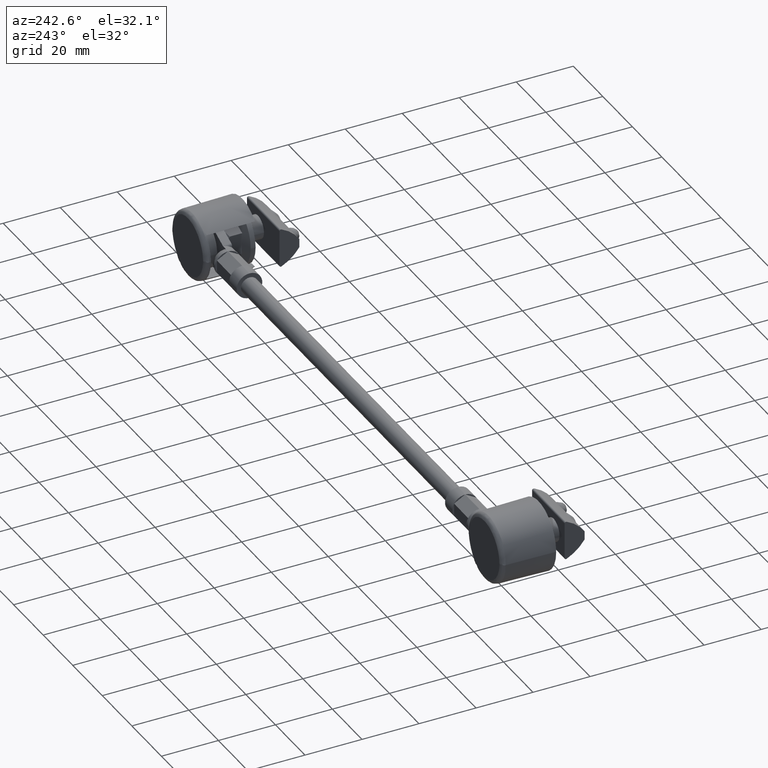
[diagram: clean part render]
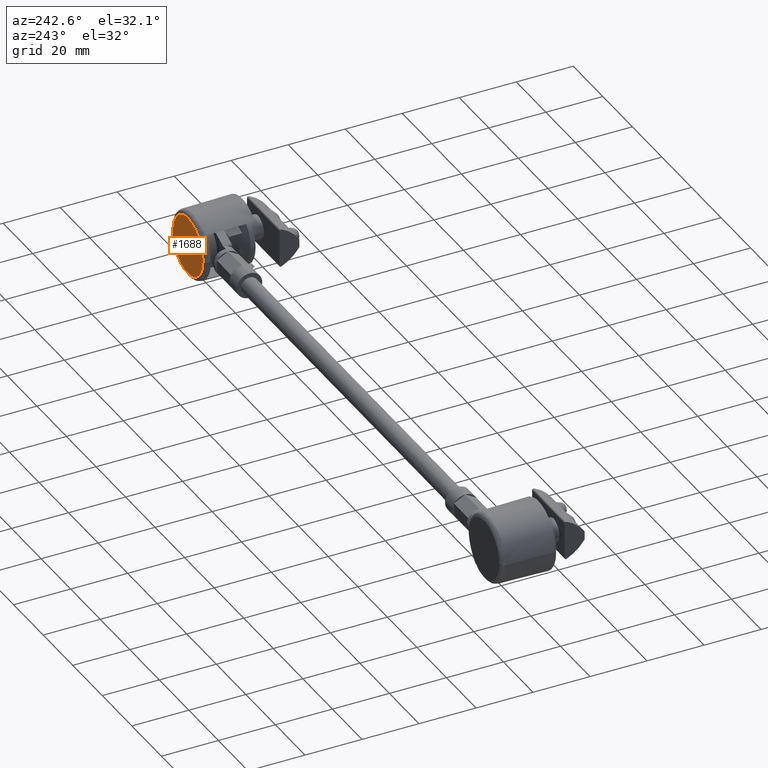
[diagram: same view with one face highlighted and labeled with its STEP entity id]
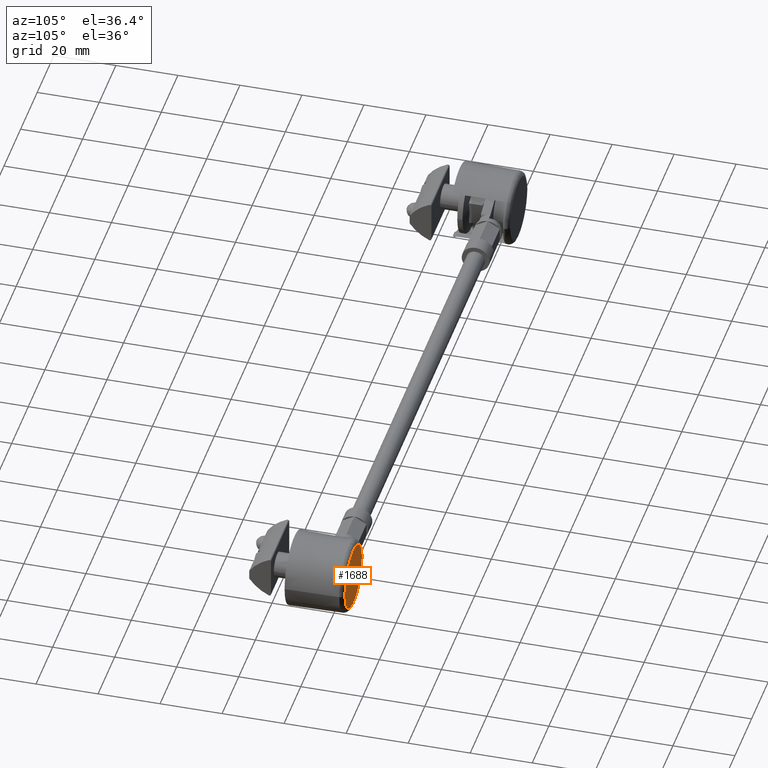
[diagram: same view with one face highlighted and labeled with its STEP entity id]
A machine part, auxiliary view. The second image highlights one B-rep face of the part: STEP entity #1688.
A second angle (auxiliary view) of the same face is appended — the face is thin or edge-on in the first view.
In plain terms, the highlighted planar face has unit normal (0, -1, 0).
Its self-contained STEP definition (entity closure, byte-faithful):
#279 = VERTEX_POINT ( 'NONE', #5620 ) ;
#434 = EDGE_LOOP ( 'NONE', ( #4272, #7465 ) ) ;
#894 = VERTEX_POINT ( 'NONE', #6884 ) ;
#1172 = DIRECTION ( 'NONE',  ( 0.0000000000000000000, -1.000000000000000000, 0.0000000000000000000 ) ) ;
#1302 = AXIS2_PLACEMENT_3D ( 'NONE', #7949, #1172, #5543 ) ;
#1688 = ADVANCED_FACE ( 'NONE', ( #4872 ), #1752, .F. ) ;
#1752 = PLANE ( 'NONE',  #1302 ) ;
#2305 = CARTESIAN_POINT ( 'NONE',  ( 4.161472288182608500E-016, 7.228014483236700700E-017, -10.19430000000000200 ) ) ;
#2923 = CARTESIAN_POINT ( 'NONE',  ( 0.0000000000000000000, 1.084202172485505200E-016, 10.19430000000000000 ) ) ;
#3034 = CARTESIAN_POINT ( 'NONE',  ( -20.38859999999999700, 0.0000000000000000000, -10.19430000000000200 ) ) ;
#3102 = CARTESIAN_POINT ( 'NONE',  ( 20.38859999999999700, 0.0000000000000000000, 10.19430000000000000 ) ) ;
#3625 = CARTESIAN_POINT ( 'NONE',  ( 4.161472288182608500E-016, 7.228014483236700700E-017, -10.19430000000000200 ) ) ;
#4234 =( BOUNDED_CURVE ( )  B_SPLINE_CURVE ( 3, ( #2923, #7279, #3034, #3625 ),
 .UNSPECIFIED., .F., .F. ) 
 B_SPLINE_CURVE_WITH_KNOTS ( ( 4, 4 ),
 ( 0.0000000000000000000, 1.000000000000000000 ),
 .UNSPECIFIED. ) 
 CURVE ( )  GEOMETRIC_REPRESENTATION_ITEM ( )  RATIONAL_B_SPLINE_CURVE ( ( 1.000000000000000000, 0.3333333333333333700, 0.3333333333333333700, 1.000000000000000000 ) ) 
 REPRESENTATION_ITEM ( '' )  );
#4272 = ORIENTED_EDGE ( 'NONE', *, *, #7296, .F. ) ;
#4872 = FACE_OUTER_BOUND ( 'NONE', #434, .T. ) ;
#4992 = CARTESIAN_POINT ( 'NONE',  ( 0.0000000000000000000, 1.084202172485505200E-016, 10.19430000000000000 ) ) ;
#5543 = DIRECTION ( 'NONE',  ( 0.0000000000000000000, -0.0000000000000000000, -1.000000000000000000 ) ) ;
#5620 = CARTESIAN_POINT ( 'NONE',  ( 4.161472288182608500E-016, 7.228014483236700700E-017, -10.19430000000000200 ) ) ;
#6313 = CARTESIAN_POINT ( 'NONE',  ( 20.38859999999999700, 0.0000000000000000000, -10.19429999999999800 ) ) ;
#6884 = CARTESIAN_POINT ( 'NONE',  ( 0.0000000000000000000, 1.084202172485505200E-016, 10.19430000000000000 ) ) ;
#7279 = CARTESIAN_POINT ( 'NONE',  ( -20.38859999999999700, 0.0000000000000000000, 10.19430000000000000 ) ) ;
#7296 = EDGE_CURVE ( 'NONE', #894, #279, #4234, .T. ) ;
#7465 = ORIENTED_EDGE ( 'NONE', *, *, #7887, .F. ) ;
#7635 =( BOUNDED_CURVE ( )  B_SPLINE_CURVE ( 3, ( #2305, #6313, #3102, #4992 ),
 .UNSPECIFIED., .F., .F. ) 
 B_SPLINE_CURVE_WITH_KNOTS ( ( 4, 4 ),
 ( 0.0000000000000000000, 1.000000000000000000 ),
 .UNSPECIFIED. ) 
 CURVE ( )  GEOMETRIC_REPRESENTATION_ITEM ( )  RATIONAL_B_SPLINE_CURVE ( ( 1.000000000000000000, 0.3333333333333333700, 0.3333333333333333700, 1.000000000000000000 ) ) 
 REPRESENTATION_ITEM ( '' )  );
#7887 = EDGE_CURVE ( 'NONE', #279, #894, #7635, .T. ) ;
#7949 = CARTESIAN_POINT ( 'NONE',  ( 0.0000000000000000000, 2.168404344971010300E-016, 10.19430000000000000 ) ) ;